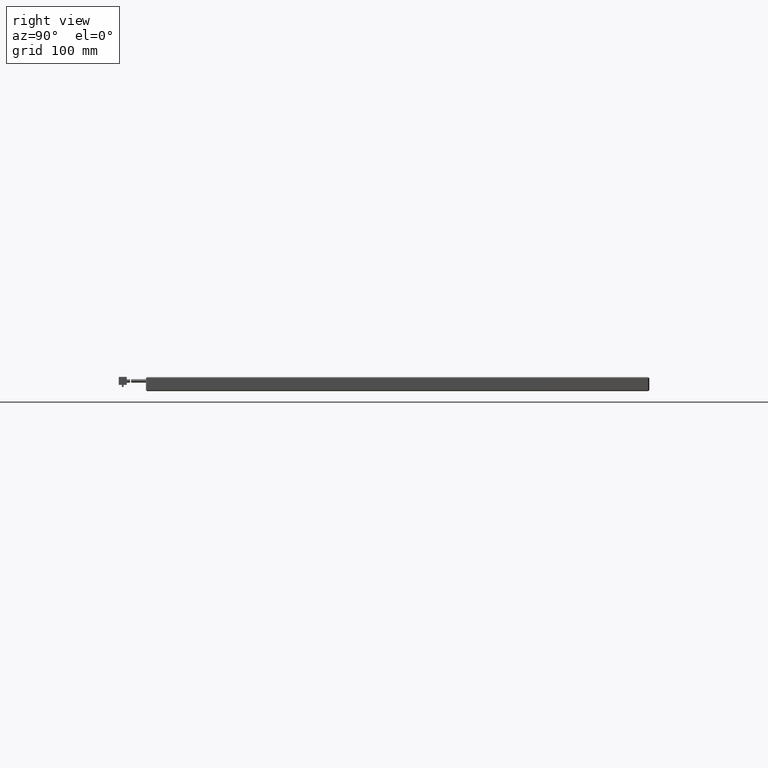
[diagram: clean part render]
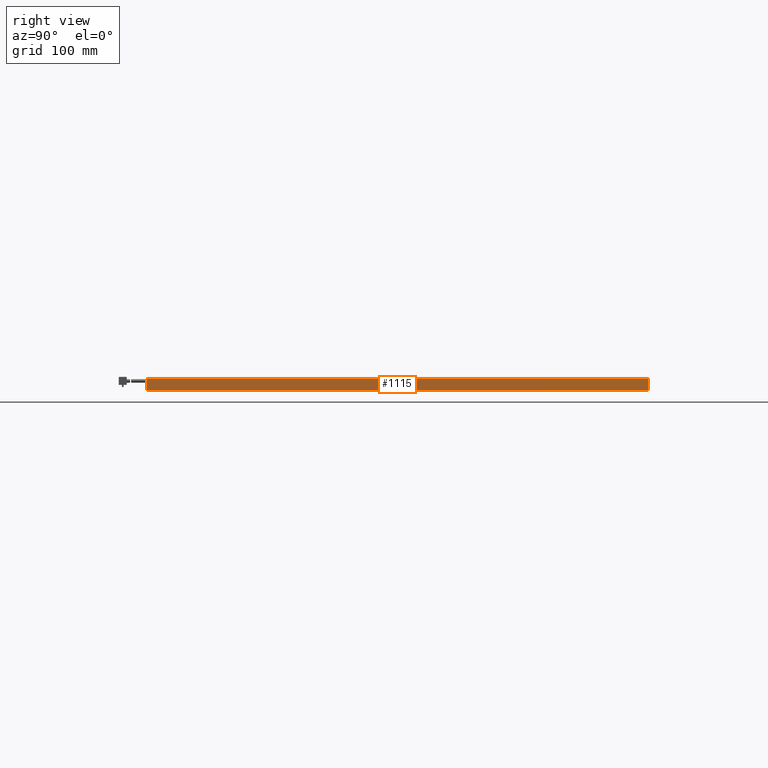
[diagram: same view with one face highlighted and labeled with its STEP entity id]
A machine part, right view. The second image highlights one B-rep face of the part: STEP entity #1115.
In plain terms, the highlighted planar face has unit normal (-1, 0, 0).
Its self-contained STEP definition (entity closure, byte-faithful):
#21 = VECTOR ( 'NONE', #20575, 1000.000000000000000 ) ;
#1074 = LINE ( 'NONE', #16745, #10276 ) ;
#1102 = CARTESIAN_POINT ( 'NONE',  ( 256.0288976917058200, -234.3025821596243900, 6.999999999999999100 ) ) ;
#1115 = ADVANCED_FACE ( 'NONE', ( #7561 ), #12866, .F. ) ;
#1389 = AXIS2_PLACEMENT_3D ( 'NONE', #12110, #11869, #12018 ) ;
#1833 = CARTESIAN_POINT ( 'NONE',  ( 256.0288976917057700, -235.3025821596243600, -4.000000000000111000 ) ) ;
#2481 = VECTOR ( 'NONE', #20525, 1000.000000000000000 ) ;
#3076 = EDGE_CURVE ( 'NONE', #4655, #10033, #12856, .T. ) ;
#4655 = VERTEX_POINT ( 'NONE', #21550 ) ;
#4746 = CARTESIAN_POINT ( 'NONE',  ( 256.0288976917057700, -234.3025821596244500, 6.999999999999999100 ) ) ;
#5768 = CARTESIAN_POINT ( 'NONE',  ( 256.0288976917057700, -234.3025821596244500, -4.000000000000111900 ) ) ;
#5916 = LINE ( 'NONE', #18595, #21 ) ;
#5967 = ORIENTED_EDGE ( 'NONE', *, *, #3076, .F. ) ;
#7561 = FACE_OUTER_BOUND ( 'NONE', #8106, .T. ) ;
#8106 = EDGE_LOOP ( 'NONE', ( #19183, #5967, #16236, #18024 ) ) ;
#8960 = VERTEX_POINT ( 'NONE', #1102 ) ;
#10033 = VERTEX_POINT ( 'NONE', #5768 ) ;
#10276 = VECTOR ( 'NONE', #14785, 1000.000000000000000 ) ;
#10523 = LINE ( 'NONE', #4746, #20943 ) ;
#11869 = DIRECTION ( 'NONE',  ( -1.000000000000000000, 0.0000000000000000000, 0.0000000000000000000 ) ) ;
#12018 = DIRECTION ( 'NONE',  ( 0.0000000000000000000, 0.0000000000000000000, 1.000000000000000000 ) ) ;
#12110 = CARTESIAN_POINT ( 'NONE',  ( 256.0288976917057700, -235.3025821596243600, 6.999999999999999100 ) ) ;
#12410 = DIRECTION ( 'NONE',  ( 0.0000000000000000000, 0.0000000000000000000, 1.000000000000000000 ) ) ;
#12856 = LINE ( 'NONE', #1833, #2481 ) ;
#12866 = PLANE ( 'NONE',  #1389 ) ;
#13586 = EDGE_CURVE ( 'NONE', #10033, #8960, #10523, .T. ) ;
#13911 = CARTESIAN_POINT ( 'NONE',  ( 256.0288976917058800, 263.6974178403754600, 6.999999999999999100 ) ) ;
#14785 = DIRECTION ( 'NONE',  ( -0.0000000000000000000, -0.0000000000000000000, -1.000000000000000000 ) ) ;
#16057 = EDGE_CURVE ( 'NONE', #16280, #4655, #1074, .T. ) ;
#16236 = ORIENTED_EDGE ( 'NONE', *, *, #16057, .F. ) ;
#16280 = VERTEX_POINT ( 'NONE', #13911 ) ;
#16745 = CARTESIAN_POINT ( 'NONE',  ( 256.0288976917057700, 263.6974178403754100, 6.999999999999999100 ) ) ;
#18024 = ORIENTED_EDGE ( 'NONE', *, *, #19578, .F. ) ;
#18595 = CARTESIAN_POINT ( 'NONE',  ( 256.0288976917058800, 264.6974178403755800, 6.999999999999999100 ) ) ;
#19183 = ORIENTED_EDGE ( 'NONE', *, *, #13586, .F. ) ;
#19578 = EDGE_CURVE ( 'NONE', #8960, #16280, #5916, .T. ) ;
#20525 = DIRECTION ( 'NONE',  ( -0.0000000000000000000, -1.000000000000000000, -0.0000000000000000000 ) ) ;
#20575 = DIRECTION ( 'NONE',  ( 0.0000000000000000000, 1.000000000000000000, 0.0000000000000000000 ) ) ;
#20943 = VECTOR ( 'NONE', #12410, 1000.000000000000000 ) ;
#21550 = CARTESIAN_POINT ( 'NONE',  ( 256.0288976917057700, 263.6974178403756900, -4.000000000000111000 ) ) ;